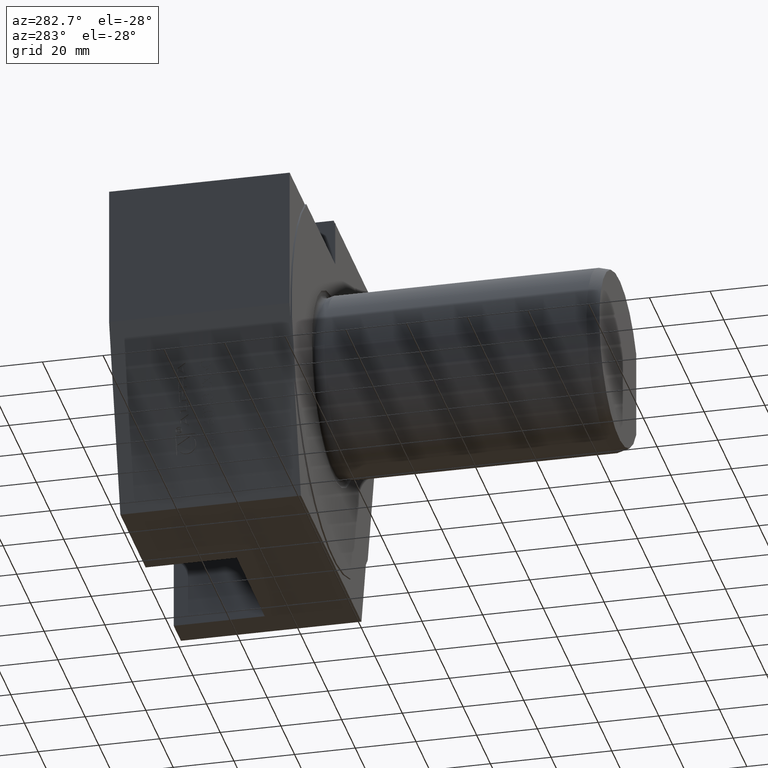
[diagram: clean part render]
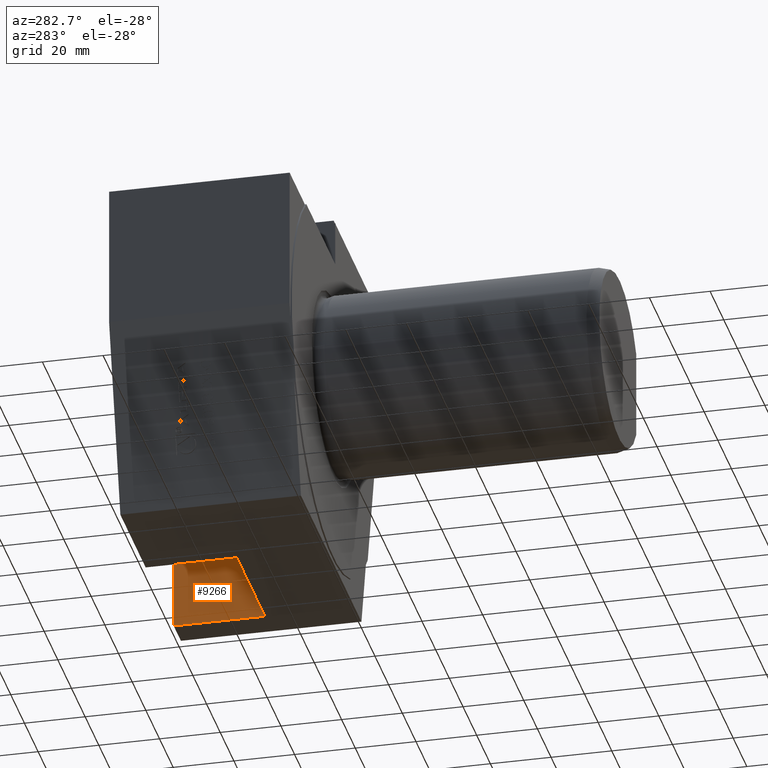
[diagram: same view with one face highlighted and labeled with its STEP entity id]
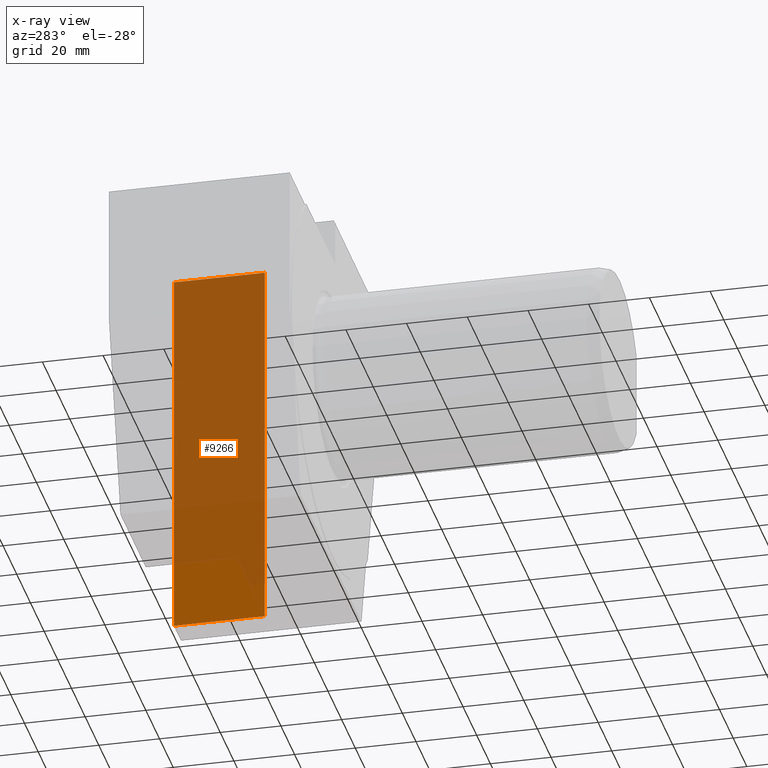
[diagram: x-ray of the same camera — body ghosted, the highlighted face saturated]
A machine part, auxiliary view. The second image highlights one B-rep face of the part: STEP entity #9266.
The next image is the same camera in x-ray: the body ghosted, the highlighted face saturated — about 84% of this face is hidden behind the body in this view.
In plain terms, the highlighted planar face has unit normal (1, 0, 0).
Its self-contained STEP definition (entity closure, byte-faithful):
#656 = DIRECTION ( 'NONE',  ( 0.000000000000000000, 0.000000000000000000, -1.000000000000000000 ) ) ;
#1096 = VERTEX_POINT ( 'NONE', #18198 ) ;
#1195 = VECTOR ( 'NONE', #11878, 1000.000000000000000 ) ;
#1685 = CARTESIAN_POINT ( 'NONE',  ( 31.99999999999998579, 59.99999999999999289, -62.50000000000001421 ) ) ;
#1893 = CARTESIAN_POINT ( 'NONE',  ( 32.00000000000000000, 30.00000000000000000, 62.50000000000000000 ) ) ;
#2974 = AXIS2_PLACEMENT_3D ( 'NONE', #17784, #16351, #656 ) ;
#3342 = DIRECTION ( 'NONE',  ( 0.000000000000000000, 0.000000000000000000, -1.000000000000000000 ) ) ;
#3437 = VECTOR ( 'NONE', #3342, 1000.000000000000000 ) ;
#3843 = EDGE_CURVE ( 'NONE', #16530, #4968, #8281, .T. ) ;
#3909 = EDGE_LOOP ( 'NONE', ( #5041, #10102, #12216, #14996 ) ) ;
#4860 = VECTOR ( 'NONE', #16884, 1000.000000000000000 ) ;
#4968 = VERTEX_POINT ( 'NONE', #1893 ) ;
#5041 = ORIENTED_EDGE ( 'NONE', *, *, #13821, .T. ) ;
#6683 = CARTESIAN_POINT ( 'NONE',  ( 31.99999999999998579, 59.99999999999999289, 0.000000000000000000 ) ) ;
#8281 = LINE ( 'NONE', #12654, #20331 ) ;
#8982 = CARTESIAN_POINT ( 'NONE',  ( 32.00000000000000000, -28.00000000000001066, -62.50000000000001421 ) ) ;
#9089 = LINE ( 'NONE', #8982, #1195 ) ;
#9130 = CARTESIAN_POINT ( 'NONE',  ( 32.00000000000000000, 30.00000000000000000, -62.50000000000002842 ) ) ;
#9266 = ADVANCED_FACE ( 'Defeature completata2_85', ( #11523 ), #14904, .F. ) ;
#10102 = ORIENTED_EDGE ( 'NONE', *, *, #3843, .T. ) ;
#10606 = LINE ( 'NONE', #15334, #4860 ) ;
#11523 = FACE_OUTER_BOUND ( 'NONE', #3909, .T. ) ;
#11878 = DIRECTION ( 'NONE',  ( 0.000000000000000000, -1.000000000000000000, 3.046929882777304895E-32 ) ) ;
#12216 = ORIENTED_EDGE ( 'NONE', *, *, #12320, .T. ) ;
#12320 = EDGE_CURVE ( 'NONE', #4968, #1096, #10606, .T. ) ;
#12654 = CARTESIAN_POINT ( 'NONE',  ( 32.00000000000000000, 30.00000000000000000, -131.5000000000000000 ) ) ;
#13821 = EDGE_CURVE ( 'NONE', #19281, #16530, #9089, .T. ) ;
#14556 = DIRECTION ( 'NONE',  ( -0.000000000000000000, -0.000000000000000000, 1.000000000000000000 ) ) ;
#14904 = PLANE ( 'NONE',  #2974 ) ;
#14996 = ORIENTED_EDGE ( 'NONE', *, *, #20121, .T. ) ;
#15334 = CARTESIAN_POINT ( 'NONE',  ( 32.00000000000000000, 77.16893165247566344, 62.50000000000000000 ) ) ;
#16351 = DIRECTION ( 'NONE',  ( 1.000000000000000000, 0.000000000000000000, 0.000000000000000000 ) ) ;
#16530 = VERTEX_POINT ( 'NONE', #9130 ) ;
#16884 = DIRECTION ( 'NONE',  ( -0.000000000000000000, 1.000000000000000000, -0.000000000000000000 ) ) ;
#17480 = LINE ( 'NONE', #6683, #3437 ) ;
#17784 = CARTESIAN_POINT ( 'NONE',  ( 32.00000000000000000, 77.16893165247566344, -131.5000000000000000 ) ) ;
#18198 = CARTESIAN_POINT ( 'NONE',  ( 32.00000000000001421, 59.99999999999999289, 62.50000000000000000 ) ) ;
#19281 = VERTEX_POINT ( 'NONE', #1685 ) ;
#20121 = EDGE_CURVE ( 'NONE', #1096, #19281, #17480, .T. ) ;
#20331 = VECTOR ( 'NONE', #14556, 1000.000000000000000 ) ;